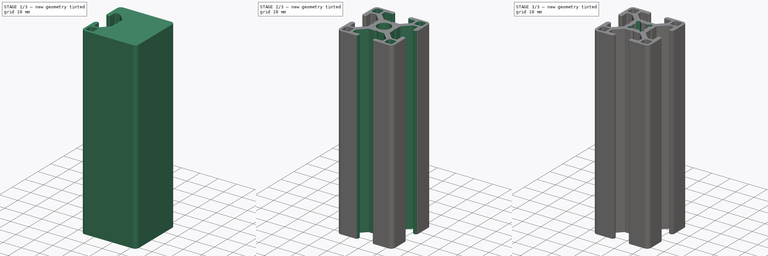
[diagram: build sequence overview — one tinted view per stage of 3, left to right]
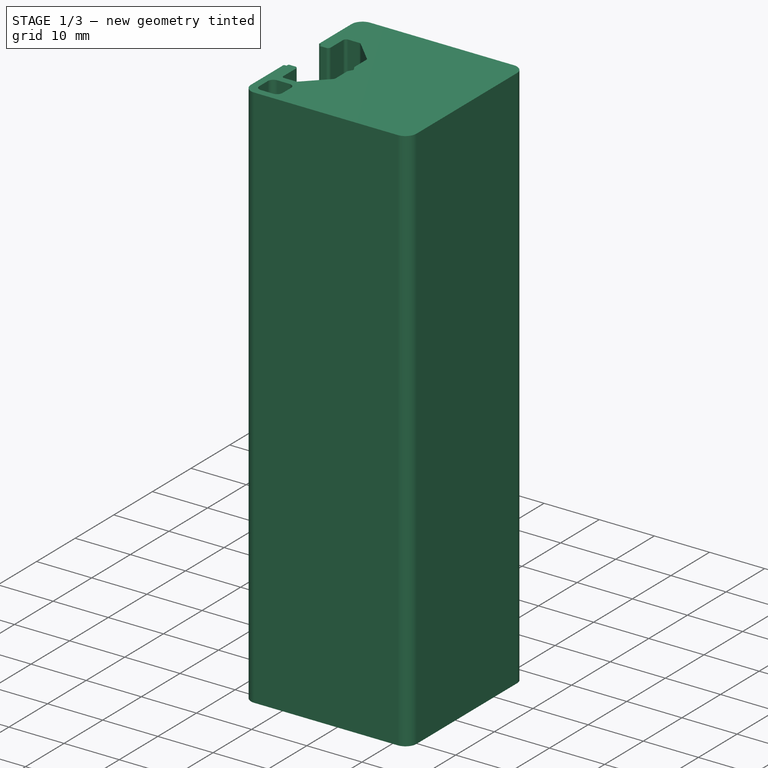
[diagram: stage 1 of 3 — iso view after this stage's code; geometry added in this stage tinted green]
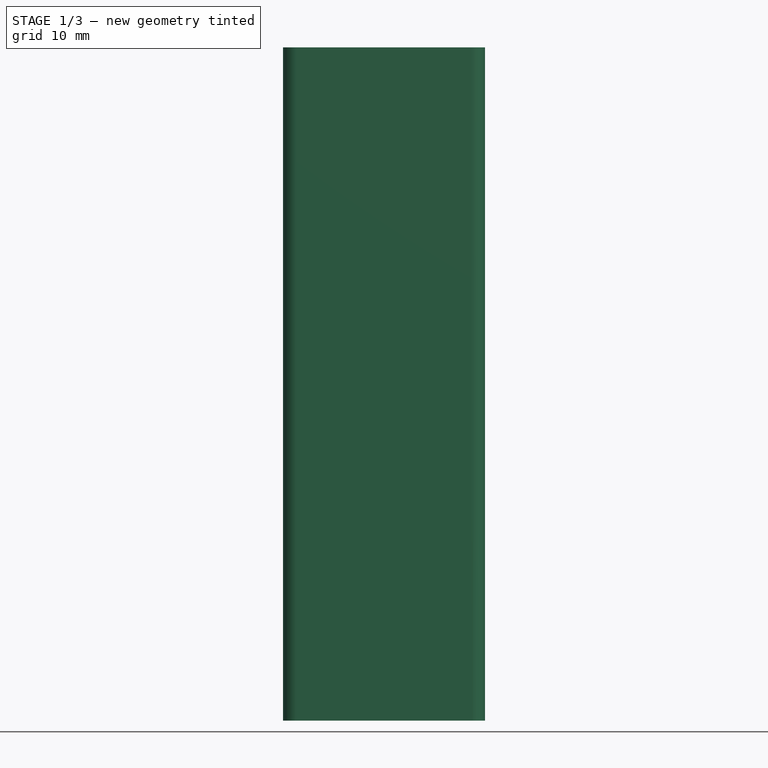
[diagram: stage 1 of 3 — front view after this stage's code; geometry added in this stage tinted green]
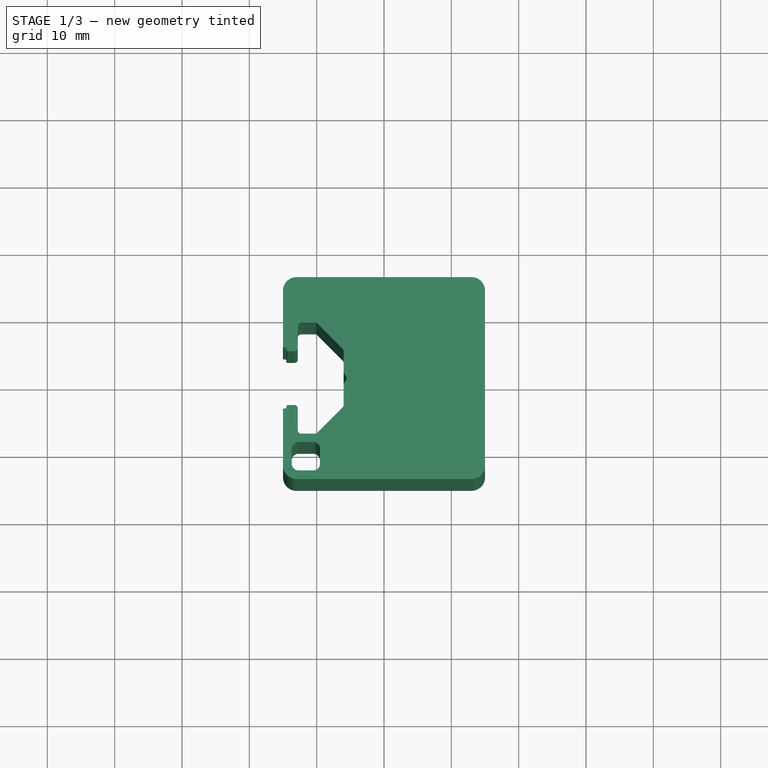
[diagram: stage 1 of 3 — top view after this stage's code; geometry added in this stage tinted green]
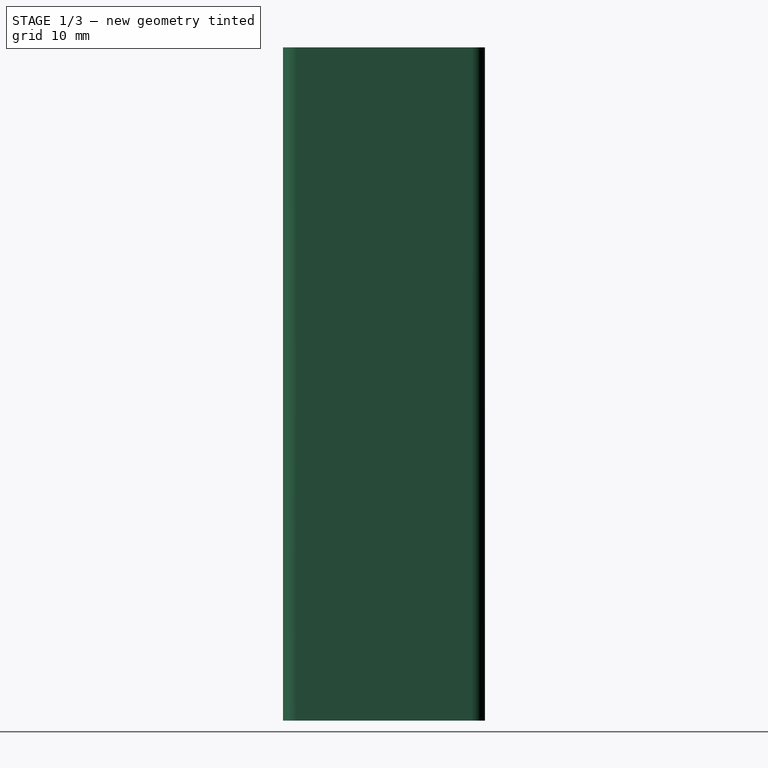
[diagram: stage 1 of 3 — right view after this stage's code; geometry added in this stage tinted green]
FCSTD DOCUMENT  (FreeCAD 0.18R16131 (Git))
Label: Profile-30x30-B-Type_Slot8
License: All rights reserved
LicenseURL: http://en.wikipedia.org/wiki/All_rights_reserved
objects: Sketcher::SketchObject×4, PartDesign::Pocket×3, PartDesign::PolarPattern×2, PartDesign::Pad×1, PartDesign::Body×1
note: 15 computed .brp shape members not serialized (recipe doc carries the construction recipe); baked Part::Feature solids carry a one-line shape summary decoded from their .brp

FEATURE [Sketcher::SketchObject] Sketch
  MapMode = 5
  Support = -> [XY_Plane]
  sketch-geometry (8):
    g0: LineSegment StartX=-13 StartY=15 StartZ=0 EndX=13 EndY=15 EndZ=0
    g1: LineSegment StartX=15 StartY=13 StartZ=0 EndX=15 EndY=-13 EndZ=0
    g2: LineSegment StartX=13 StartY=-15 StartZ=0 EndX=-13 EndY=-15 EndZ=0
    g3: LineSegment StartX=-15 StartY=-13 StartZ=0 EndX=-15 EndY=13 EndZ=0
    g4: ArcOfCircle CenterX=-13 CenterY=13 CenterZ=0 NormalX=0 NormalY=0 NormalZ=1 AngleXU=0 Radius=2 StartAngle=1.5708 EndAngle=3.14159
    g5: ArcOfCircle CenterX=13 CenterY=13 CenterZ=0 NormalX=0 NormalY=0 NormalZ=1 AngleXU=0 Radius=2 StartAngle=-1.91e-13 EndAngle=1.5708
    g6: ArcOfCircle CenterX=13 CenterY=-13 CenterZ=0 NormalX=0 NormalY=0 NormalZ=1 AngleXU=0 Radius=2 StartAngle=4.71239 EndAngle=6.28319
    g7: ArcOfCircle CenterX=-13 CenterY=-13 CenterZ=0 NormalX=0 NormalY=0 NormalZ=1 AngleXU=0 Radius=2 StartAngle=3.14159 EndAngle=4.71239
  constraints (18):
    c: Horizontal(g0)
    c: Vertical(g3)
    c: Tangent(g3,g4) = 1.5708
    c: Tangent(g0,g4) = 1.5708
    c: Tangent(g0,g5) = 1.5708
    c: Tangent(g1,g5) = 1.5708
    c: Tangent(g1,g6) = 1.5708
    c: Tangent(g2,g6) = 1.5708
    c: Tangent(g3,g7) = 1.5708
    c: Tangent(g2,g7) = 1.5708
    c: Radius(g4) = 2
    c: Equal(g4,g5)
    c: Equal(g5,g7)
    c: Equal(g7,g6)
    c: Symmetric(g2,g2,g-2)
    c: Symmetric(g1,g1,g-1)
    c: DistanceX(g3,g1) = 30
    c: DistanceY(g2,g0) = 30
FEATURE [PartDesign::Pad] Pad  label="Solid_Material"
  Length = 100
  Length2 = 100
  Profile = -> Sketch
  Type = 0
FEATURE [Sketcher::SketchObject] Sketch001
  ExternalGeometry = -> [Pad]
  MapMode = 5
  Placement = pos=(0,0,0) rot=(1,0,0;3.14159rad)
  Support = -> [Pad]
  sketch-geometry (40):
    g0: LineSegment StartX=-14.5 StartY=-4.5 StartZ=0 EndX=-14.5 EndY=-4.2 EndZ=0
    g1: LineSegment StartX=-14.3 StartY=-4 StartZ=0 EndX=-13.3 EndY=-4 EndZ=0
    g2: LineSegment StartX=-12.8 StartY=-4.5 StartZ=0 EndX=-12.8 EndY=-7.75 EndZ=0
    g3: LineSegment StartX=-12.3 StartY=-8.25 StartZ=0 EndX=-10.2534 EndY=-8.25 EndZ=0
    g4: LineSegment StartX=-9.9 StartY=-8.10371 StartZ=0 EndX=-6.14661 EndY=-4.35371 EndZ=0
    g5: LineSegment StartX=-6 StartY=-4 StartZ=0 EndX=-6 EndY=-0.95 EndZ=0
    g6: LineSegment StartX=-5.97386 StartY=-0.851148 StartZ=0 EndX=-5.54614 EndY=-0.0988516 EndZ=0
    g7: LineSegment StartX=-5.54614 StartY=0.0988516 StartZ=0 EndX=-5.97386 EndY=0.851148 EndZ=0
    g8: LineSegment StartX=-6 StartY=0.95 StartZ=0 EndX=-6 EndY=4 EndZ=0
    g9: LineSegment StartX=-6.14661 StartY=4.35371 StartZ=0 EndX=-9.9 EndY=8.10371 EndZ=0
    g10: LineSegment StartX=-10.2534 StartY=8.25 StartZ=0 EndX=-12.3 EndY=8.25 EndZ=0
    g11: LineSegment StartX=-12.8 StartY=7.75 StartZ=0 EndX=-12.8 EndY=4.5 EndZ=0
    g12: LineSegment StartX=-13.3 StartY=4 StartZ=0 EndX=-14.3 EndY=4 EndZ=0
    g13: LineSegment StartX=-14.5 StartY=4.2 StartZ=0 EndX=-14.5 EndY=4.5 EndZ=0
    g14: ArcOfCircle CenterX=-14.3 CenterY=4.2 CenterZ=0 NormalX=0 NormalY=0 NormalZ=1 AngleXU=0 Radius=0.2 StartAngle=3.14159 EndAngle=4.71239
    g15: ArcOfCircle CenterX=-13.3 CenterY=4.5 CenterZ=0 NormalX=0 NormalY=0 NormalZ=1 AngleXU=0 Radius=0.5 StartAngle=4.71239 EndAngle=6.28319
    g16: ArcOfCircle CenterX=-13.3 CenterY=-4.5 CenterZ=0 NormalX=0 NormalY=0 NormalZ=1 AngleXU=0 Radius=0.5 StartAngle=1e-16 EndAngle=1.5708
    g17: ArcOfCircle CenterX=-14.3 CenterY=-4.2 CenterZ=0 NormalX=0 NormalY=0 NormalZ=1 AngleXU=0 Radius=0.2 StartAngle=1.5708 EndAngle=3.14159
    g18: ArcOfCircle CenterX=-12.3 CenterY=-7.75 CenterZ=0 NormalX=0 NormalY=0 NormalZ=1 AngleXU=0 Radius=0.5 StartAngle=3.14159 EndAngle=4.71239
    g19: ArcOfCircle CenterX=-10.2534 CenterY=-7.75 CenterZ=0 NormalX=0 NormalY=0 NormalZ=1 AngleXU=0 Radius=0.5 StartAngle=4.71239 EndAngle=5.49733
    g20: ArcOfCircle CenterX=-12.3 CenterY=7.75 CenterZ=0 NormalX=0 NormalY=0 NormalZ=1 AngleXU=0 Radius=0.5 StartAngle=1.5708 EndAngle=3.14159
    g21: ArcOfCircle CenterX=-10.2534 CenterY=7.75 CenterZ=0 NormalX=0 NormalY=0 NormalZ=1 AngleXU=0 Radius=0.5 StartAngle=0.78585 EndAngle=1.5708
    g22: ArcOfCircle CenterX=-6.5 CenterY=4 CenterZ=0 NormalX=0 NormalY=0 NormalZ=1 AngleXU=0 Radius=0.5 StartAngle=2e-16 EndAngle=0.78585
    g23: ArcOfCircle CenterX=-5.8 CenterY=0.95 CenterZ=0 NormalX=0 NormalY=0 NormalZ=1 AngleXU=0 Radius=0.2 StartAngle=3.14159 EndAngle=3.65857
    g24: ArcOfCircle CenterX=-5.72 CenterY=0 CenterZ=0 NormalX=0 NormalY=0 NormalZ=1 AngleXU=0 Radius=0.2 StartAngle=5.7662 EndAngle=6.80017
    g25: ArcOfCircle CenterX=-5.8 CenterY=-0.95 CenterZ=0 NormalX=0 NormalY=0 NormalZ=1 AngleXU=0 Radius=0.2 StartAngle=2.62461 EndAngle=3.14159
    g26: ArcOfCircle CenterX=-6.5 CenterY=-4 CenterZ=0 NormalX=0 NormalY=0 NormalZ=1 AngleXU=0 Radius=0.5 StartAngle=5.49733 EndAngle=6.28319
    g27: LineSegment StartX=-14.5 StartY=-4.5 StartZ=0 EndX=-14.8 EndY=-4.5 EndZ=0
    g28: LineSegment StartX=-14.5 StartY=4.5 StartZ=0 EndX=-14.8 EndY=4.5 EndZ=0
    g29: ArcOfCircle CenterX=-14.8 CenterY=4.7 CenterZ=0 NormalX=0 NormalY=0 NormalZ=1 AngleXU=0 Radius=0.2 StartAngle=3.14162 EndAngle=4.71239
    g30: ArcOfCircle CenterX=-14.8 CenterY=-4.7 CenterZ=0 NormalX=0 NormalY=0 NormalZ=1 AngleXU=0 Radius=0.2 StartAngle=1.5708 EndAngle=3.14156
    g31: LineSegment StartX=-15 StartY=4.69999 StartZ=0 EndX=-15 EndY=-4.69999 EndZ=0
    g32: LineSegment StartX=-12.7 StartY=13.7 StartZ=0 EndX=-10.5 EndY=13.7 EndZ=0
    g33: LineSegment StartX=-9.5 StartY=12.7 StartZ=0 EndX=-9.5 EndY=10.5 EndZ=0
    g34: LineSegment StartX=-10.5 StartY=9.5 StartZ=0 EndX=-12.7 EndY=9.5 EndZ=0
    g35: LineSegment StartX=-13.7 StartY=10.5 StartZ=0 EndX=-13.7 EndY=12.7 EndZ=0
    g36: ArcOfCircle CenterX=-12.7 CenterY=12.7 CenterZ=0 NormalX=0 NormalY=0 NormalZ=1 AngleXU=0 Radius=1 StartAngle=1.5708 EndAngle=3.14159
    g37: ArcOfCircle CenterX=-10.5 CenterY=12.7 CenterZ=0 NormalX=0 NormalY=0 NormalZ=1 AngleXU=0 Radius=1 StartAngle=-9e-16 EndAngle=1.5708
    g38: ArcOfCircle CenterX=-10.5 CenterY=10.5 CenterZ=0 NormalX=0 NormalY=0 NormalZ=1 AngleXU=0 Radius=1 StartAngle=4.71239 EndAngle=6.28319
    g39: ArcOfCircle CenterX=-12.7 CenterY=10.5 CenterZ=0 NormalX=0 NormalY=0 NormalZ=1 AngleXU=0 Radius=1 StartAngle=3.14159 EndAngle=4.71239
  constraints (99):
    c: Horizontal(g1)
    c: Vertical(g2)
    c: Horizontal(g3)
    c: Vertical(g5)
    c: Vertical(g8)
    c: Vertical(g11)
    c: Horizontal(g12)
    c: Horizontal(g10)
    c: Vertical(g13)
    c: Vertical(g0)
    c: Tangent(g13,g14) = 1.5708
    c: Tangent(g12,g14) = 1.5708
    c: Tangent(g12,g15) = 1.5708
    c: Tangent(g11,g15) = 1.5708
    c: Tangent(g1,g16) = 1.5708
    c: Tangent(g2,g16) = 1.5708
    c: Tangent(g0,g17) = 1.5708
    c: Tangent(g1,g17) = 1.5708
    c: Tangent(g2,g18) = -1.5708
    c: Tangent(g3,g18) = -1.5708
    c: Tangent(g3,g19) = -1.5708
    c: Tangent(g4,g19) = -1.5708
    c: Tangent(g11,g20) = -1.5708
    c: Tangent(g10,g20) = -1.5708
    c: Tangent(g10,g21) = -1.5708
    c: Tangent(g9,g21) = -1.5708
    c: Tangent(g9,g22) = -1.5708
    c: Tangent(g8,g22) = -1.5708
    c: Tangent(g8,g23) = 1.5708
    c: Tangent(g7,g23) = 1.5708
    c: Tangent(g7,g24) = -1.5708
    c: Tangent(g6,g24) = -1.5708
    c: Tangent(g5,g25) = 1.5708
    c: Tangent(g6,g25) = 1.5708
    c: Tangent(g5,g26) = -1.5708
    c: Tangent(g4,g26) = -1.5708
    c: Equal(g14,g17)
    c: Equal(g15,g16)
    c: Equal(g21,g19)
    c: Equal(g22,g26)
    c: Equal(g23,g25)
    c: Coincident(g0,g27)
    c: Horizontal(g27)
    c: Coincident(g13,g28)
    c: Horizontal(g28)
    c: Tangent(g29,g-4)
    c: Tangent(g29,g28) = 1.5708
    c: Tangent(g30,g-4)
    c: Tangent(g30,g27) = -1.5708
    c: Coincident(g31,g29)
    c: Coincident(g31,g30)
    c: Symmetric(g29,g30,g-1)
    c: Symmetric(g10,g3,g-1)
    c: Radius(g29) = 0.2
    c: Radius(g14) = 0.2
    c: Radius(g15) = 0.5
    c: Radius(g20) = 0.5
    c: Radius(g21) = 0.5
    c: Radius(g22) = 0.5
    c: Radius(g23) = 0.2
    c: Radius(g24) = 0.2
    c: PointOnObject(g24,g-1)
    c: DistanceX(g30,g0) = 0.5
    c: DistanceX(g30,g2) = 2.2
    c: DistanceX(g30,g5) = 9
    c: DistanceY(g3,g10) = 16.5
    c: Symmetric(g7,g6,g-1)
    c: DistanceX(g2,g4) = 2.9
    c: DistanceY(g26,g24) = 4
    c: DistanceX(g30,g24) = 9.28
    c: Equal(g10,g3)
    c: Equal(g5,g8)
    c: Equal(g0,g13)
    c: DistanceY(g1,g12) = 8
    c: Equal(g27,g28)
    c: Symmetric(g1,g12,g-1)
    c: DistanceY(g0,g13) = 9
    c: DistanceY(g25,g24) = 0.95
    c: PointOnObject(g29,g-4)
    c: Horizontal(g32)
    c: Horizontal(g34)
    c: Vertical(g33)
    c: Vertical(g35)
    c: Tangent(g35,g36) = 1.5708
    c: Tangent(g32,g36) = 1.5708
    c: Tangent(g32,g37) = 1.5708
    c: Tangent(g33,g37) = 1.5708
    c: Tangent(g33,g38) = 1.5708
    c: Tangent(g34,g38) = 1.5708
    c: Tangent(g35,g39) = 1.5708
    c: Tangent(g34,g39) = 1.5708
    c: Radius(g36) = 1
    c: Equal(g36,g37)
    c: Equal(g37,g38)
    c: Equal(g38,g39)
    c: DistanceX(g-4,g35) = 1.3
    c: DistanceY(g32,g-3) = 1.3
    c: DistanceX(g35,g33) = 4.2
    c: DistanceY(g34,g32) = 4.2
FEATURE [PartDesign::Pocket] Pocket
  BaseFeature = -> Pad
  Length = 5
  Length2 = 100
  Profile = -> Sketch001
  Type = 1
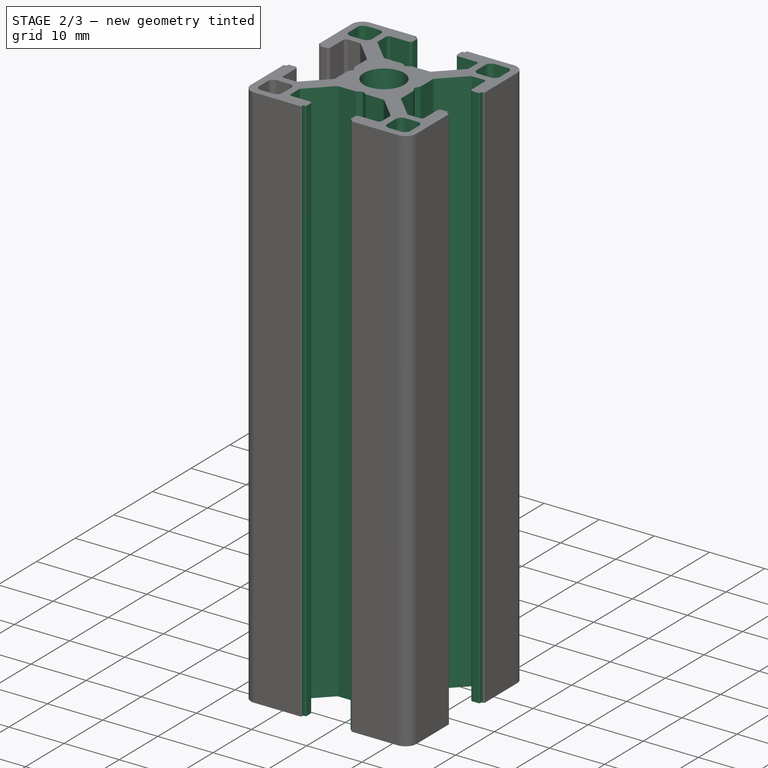
[diagram: stage 2 of 3 — iso view after this stage's code; geometry added in this stage tinted green]
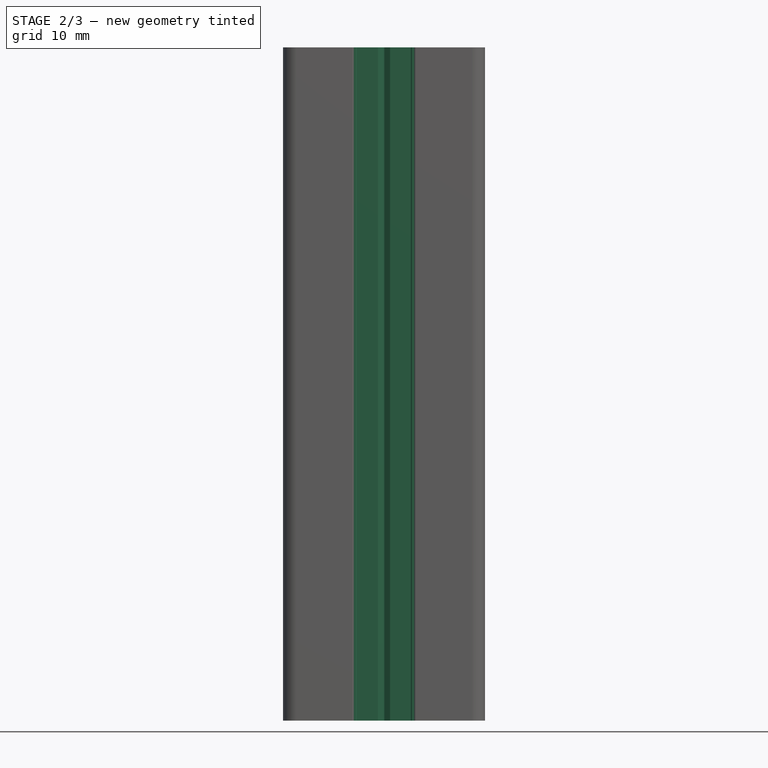
[diagram: stage 2 of 3 — front view after this stage's code; geometry added in this stage tinted green]
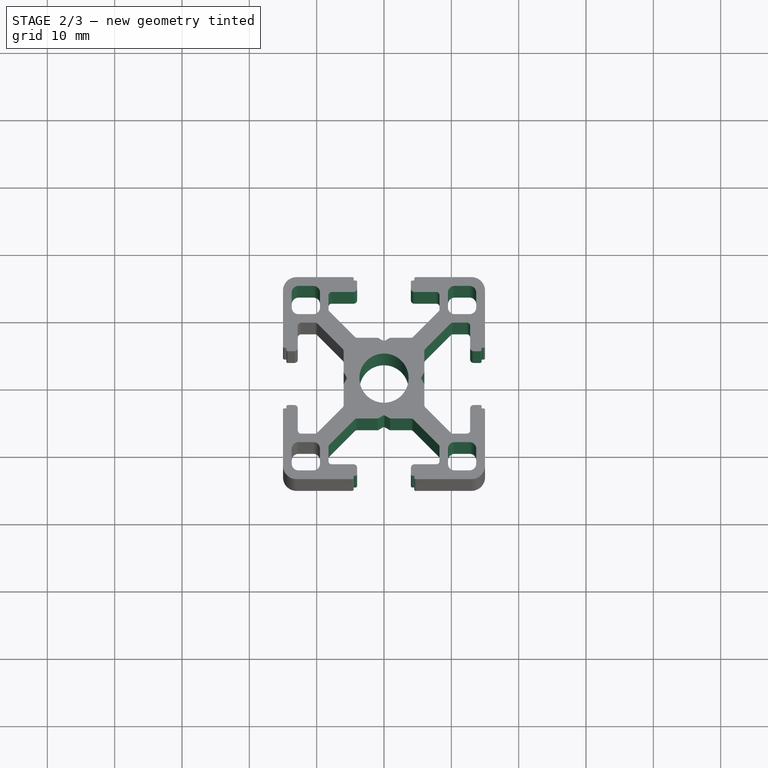
[diagram: stage 2 of 3 — top view after this stage's code; geometry added in this stage tinted green]
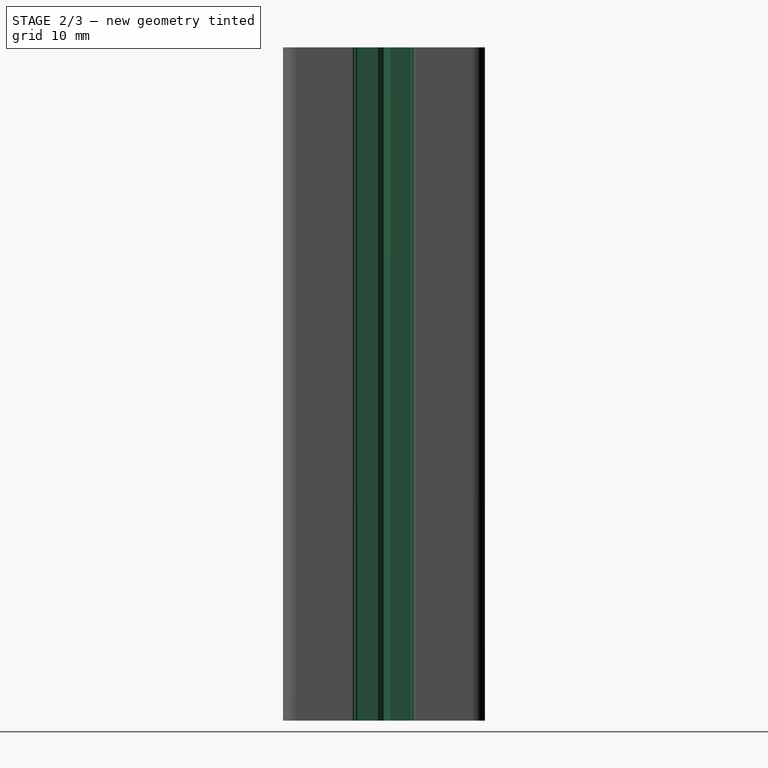
[diagram: stage 2 of 3 — right view after this stage's code; geometry added in this stage tinted green]
FEATURE [PartDesign::PolarPattern] PolarPattern
  Angle = 360
  Axis = -> Sketch001 [N_Axis]
  BaseFeature = -> Pocket
  Occurrences = 4
  Originals = -> [Pocket]
FEATURE [Sketcher::SketchObject] Sketch002
  MapMode = 5
  Placement = pos=(0,0,0) rot=(1,0,0;3.14159rad)
  Support = -> [PolarPattern]
  sketch-geometry (1):
    g0: Circle CenterX=0 CenterY=0 CenterZ=0 NormalX=0 NormalY=0 NormalZ=1 AngleXU=0 Radius=3.65
  constraints (2):
    c: Coincident(g0,g-1)
    c: Radius(g0) = 3.65
FEATURE [PartDesign::Pocket] Pocket001
  BaseFeature = -> PolarPattern
  Length = 5
  Length2 = 100
  Profile = -> Sketch002
  Type = 1
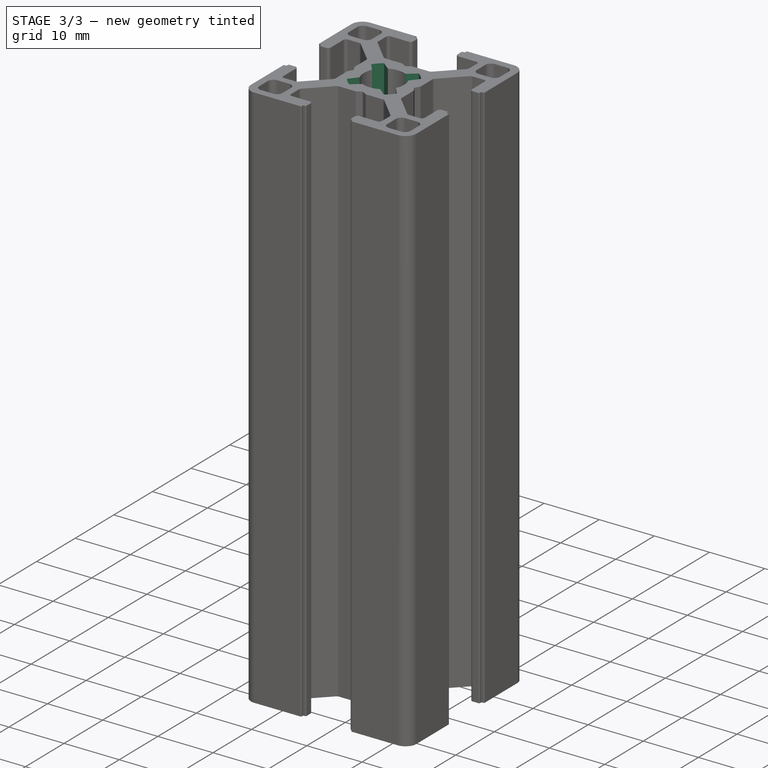
[diagram: stage 3 of 3 — iso view after this stage's code; geometry added in this stage tinted green]
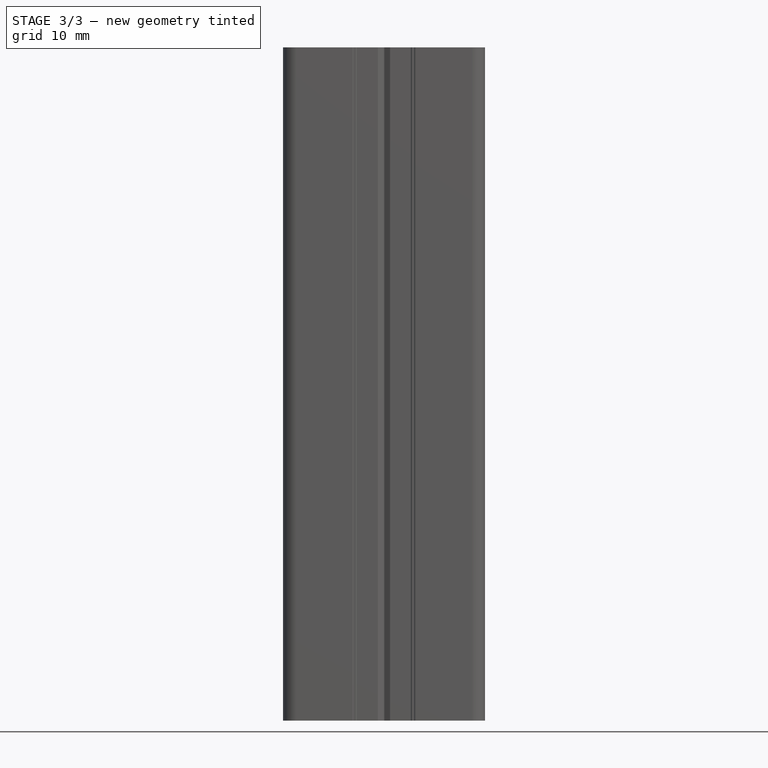
[diagram: stage 3 of 3 — front view after this stage's code; geometry added in this stage tinted green]
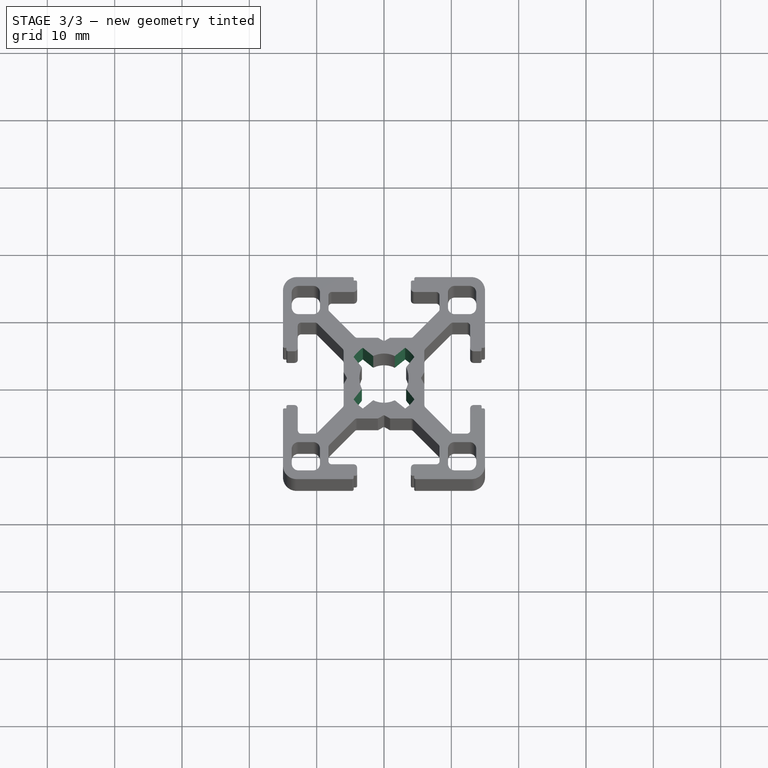
[diagram: stage 3 of 3 — top view after this stage's code; geometry added in this stage tinted green]
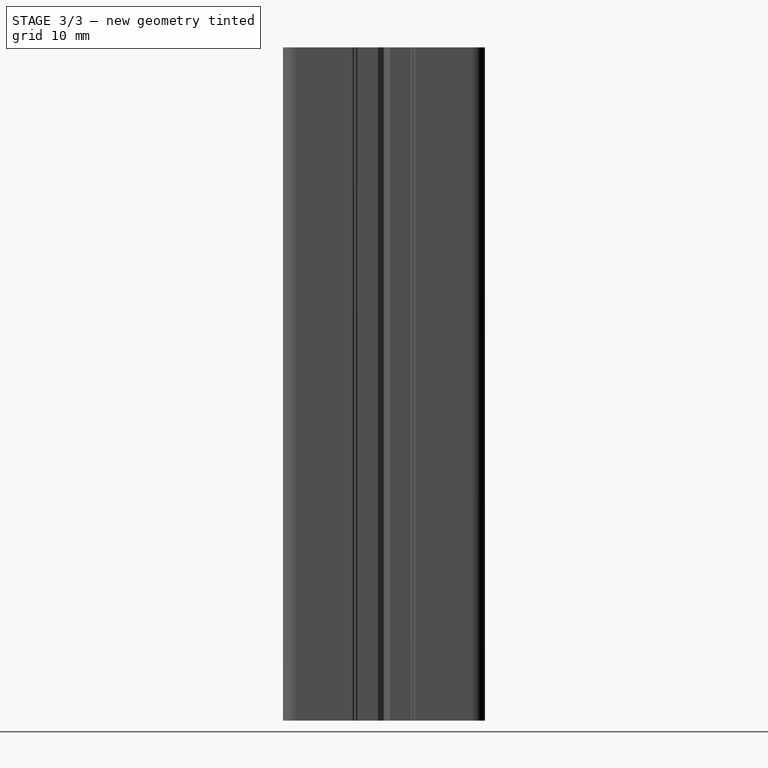
[diagram: stage 3 of 3 — right view after this stage's code; geometry added in this stage tinted green]
FEATURE [Sketcher::SketchObject] Sketch003
  ExternalGeometry = -> [Pocket001]
  MapMode = 5
  Placement = pos=(0,0,0) rot=(1,0,0;3.14159rad)
  Support = -> [Pocket001]
  expr: Constraints[10] = 12.9 / 2
  sketch-geometry (5):
    g0: ArcOfCircle CenterX=0 CenterY=0 CenterZ=0 NormalX=0 NormalY=0 NormalZ=1 AngleXU=0 Radius=5.5 StartAngle=0.608368 EndAngle=0.962217
    g1: ArcOfCircle CenterX=0 CenterY=0 CenterZ=0 NormalX=0 NormalY=0 NormalZ=1 AngleXU=0 Radius=3.65 StartAngle=0.453194 EndAngle=1.11739
    g2: LineSegment StartX=1.59881 StartY=3.28121 StartZ=0 EndX=3.14437 EndY=4.51253 EndZ=0
    g3: LineSegment StartX=3.28154 StartY=1.59811 StartZ=0 EndX=4.5132 EndY=3.14341 EndZ=0
    g4: LineSegment [constr] StartX=0 StartY=0 StartZ=0 EndX=3.8895 EndY=3.88868 EndZ=0
  constraints (14):
    c: Coincident(g0,g-1)
    c: PointOnObject(g1,g-3)
    c: Coincident(g2,g1)
    c: Coincident(g2,g0)
    c: Coincident(g3,g1)
    c: Coincident(g3,g0)
    c: Angle(g2,g3) = 0.225147
    c: Distance(g1,g1) = 2.38
    c: Distance(g4) = 5.5
    c: PointOnObject(g4,g0)
    c: Angle(g4,g3) = 0.112574
    c: Symmetric(g1,g1,g4)
    c: Coincident(g4,g0)
    c: Coincident(g1,g0)
FEATURE [PartDesign::Pocket] Pocket002
  BaseFeature = -> Pocket001
  Length = 5
  Length2 = 100
  Profile = -> Sketch003
  Type = 1
FEATURE [PartDesign::PolarPattern] PolarPattern001
  Angle = 360
  Axis = -> Sketch003 [N_Axis]
  BaseFeature = -> Pocket002
  Occurrences = 4
  Originals = -> [Pocket002]
FEATURE [PartDesign::Body] Body
  Group = -> [Sketch,Pad,Sketch001,Pocket,PolarPattern,Sketch002,Pocket001,Sketch003,Pocket002,PolarPattern001]
  Origin = -> Origin
  Tip = -> PolarPattern001
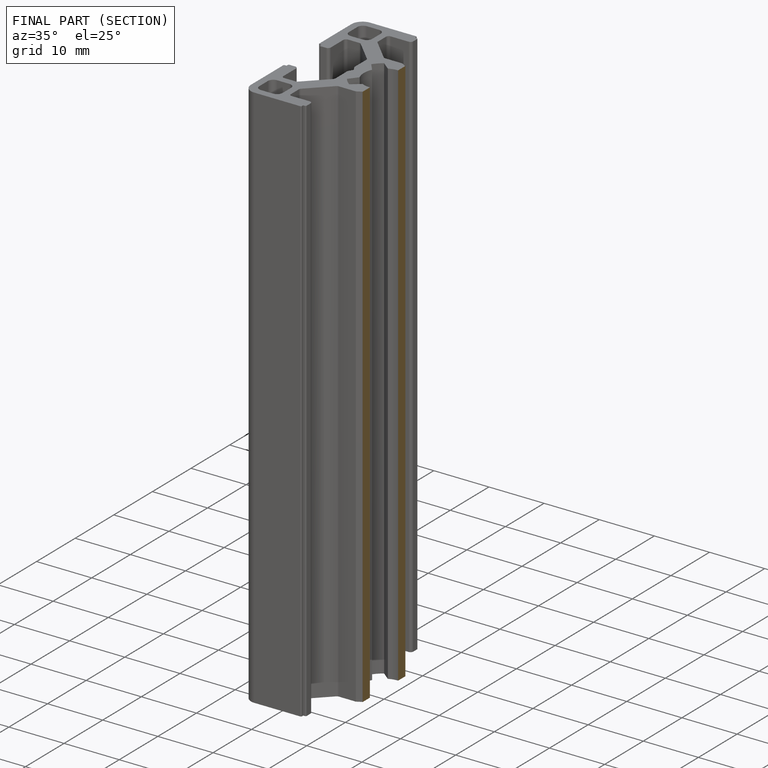
[diagram: finished part — half-section view (interior)]
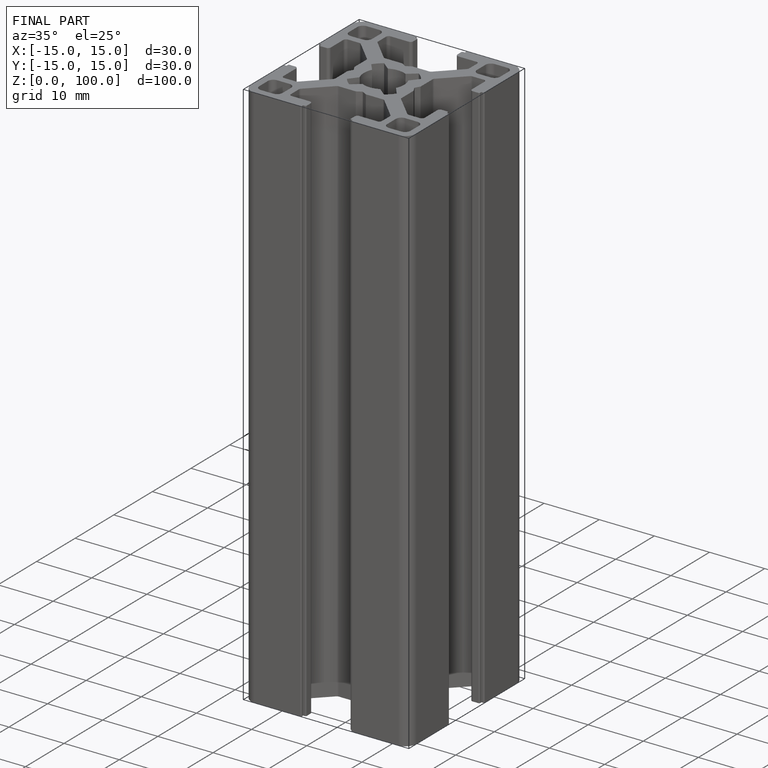
[diagram: finished part — iso view with bounding-box wireframe]
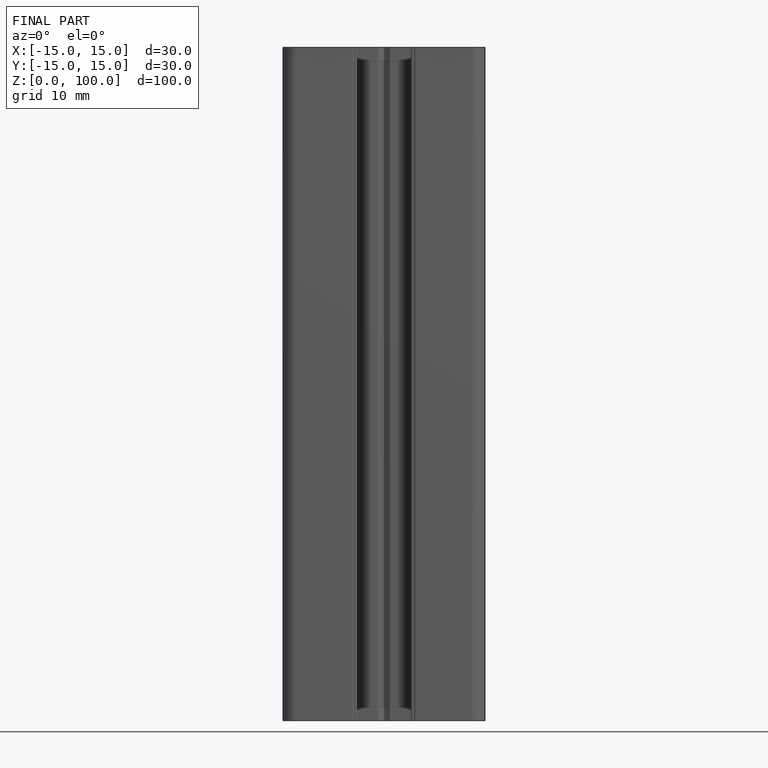
[diagram: finished part — front view with bounding-box wireframe]
